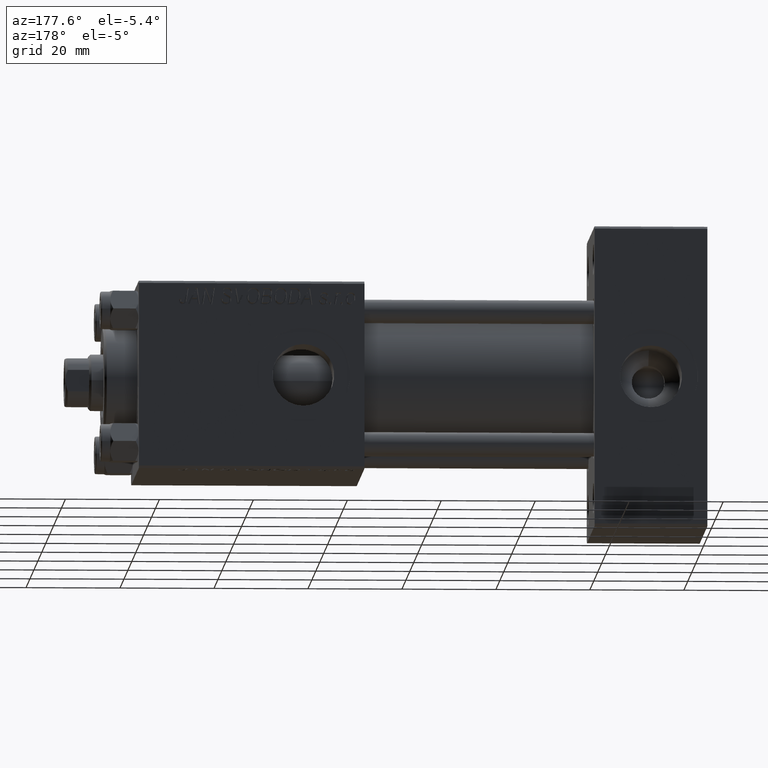
[diagram: clean part render]
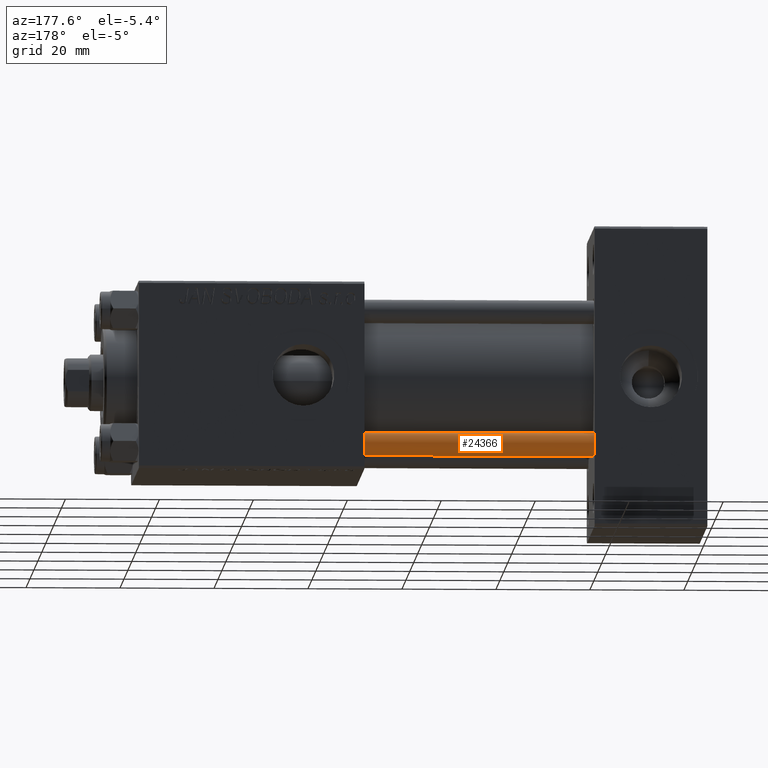
[diagram: same view with one face highlighted and labeled with its STEP entity id]
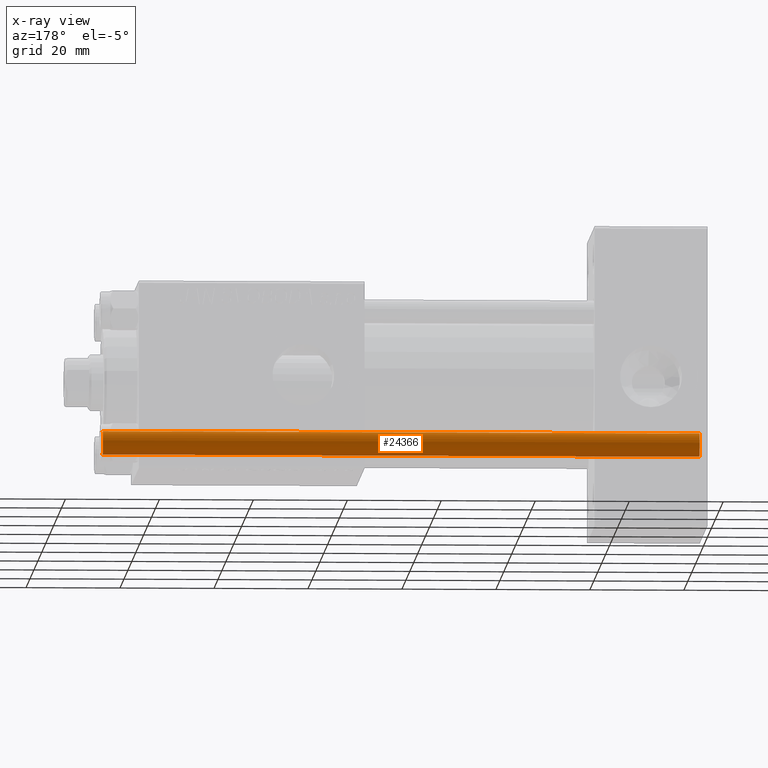
[diagram: x-ray of the same camera — body ghosted, the highlighted face saturated]
A machine part, auxiliary view. The second image highlights one B-rep face of the part: STEP entity #24366.
The next image is the same camera in x-ray: the body ghosted, the highlighted face saturated — about 0% of this face is hidden behind the body in this view.
In plain terms, the highlighted cylindrical surface (edge-blend (fillet) strip) has radius 2.5 mm, axis along (-1, 0, 0).
Its self-contained STEP definition (entity closure, byte-faithful):
#811 = EDGE_CURVE ( 'NONE', #39328, #16048, #17593, .T. ) ;
#867 = EDGE_CURVE ( 'NONE', #39328, #16088, #1653, .T. ) ;
#1653 = CIRCLE ( 'NONE', #42764, 2.500000000000000000 ) ;
#2713 = VERTEX_POINT ( 'NONE', #41228 ) ;
#4788 = CARTESIAN_POINT ( 'NONE',  ( 0.000000000000000000, 0.000000000000000000, 128.0000000000000000 ) ) ;
#8382 = CARTESIAN_POINT ( 'NONE',  ( -2.500000000000000000, 0.000000000000000000, 127.5000000000000000 ) ) ;
#11103 = AXIS2_PLACEMENT_3D ( 'NONE', #4788, #36062, #31799 ) ;
#16048 = VERTEX_POINT ( 'NONE', #41687 ) ;
#16088 = VERTEX_POINT ( 'NONE', #8382 ) ;
#17593 = LINE ( 'NONE', #29448, #45170 ) ;
#18329 = CARTESIAN_POINT ( 'NONE',  ( 0.000000000000000000, 0.000000000000000000, 127.5000000000000000 ) ) ;
#19410 = ORIENTED_EDGE ( 'NONE', *, *, #867, .T. ) ;
#20871 = DIRECTION ( 'NONE',  ( -0.000000000000000000, -0.000000000000000000, -1.000000000000000000 ) ) ;
#22431 = DIRECTION ( 'NONE',  ( 1.000000000000000000, 0.000000000000000000, 0.000000000000000000 ) ) ;
#22656 = AXIS2_PLACEMENT_3D ( 'NONE', #49167, #38051, #22431 ) ;
#23481 = EDGE_LOOP ( 'NONE', ( #46770, #19410, #30339, #39041 ) ) ;
#24366 = ADVANCED_FACE ( 'NONE', ( #36310 ), #24479, .T. ) ;
#24479 = CYLINDRICAL_SURFACE ( 'NONE', #11103, 2.500000000000000000 ) ;
#29448 = CARTESIAN_POINT ( 'NONE',  ( 2.500000000000000000, 3.061616997868383141E-16, 128.0000000000000000 ) ) ;
#30339 = ORIENTED_EDGE ( 'NONE', *, *, #31948, .T. ) ;
#30693 = DIRECTION ( 'NONE',  ( 0.000000000000000000, 0.000000000000000000, -1.000000000000000000 ) ) ;
#31176 = CARTESIAN_POINT ( 'NONE',  ( -2.500000000000000000, 0.000000000000000000, 128.0000000000000000 ) ) ;
#31799 = DIRECTION ( 'NONE',  ( -1.000000000000000000, 0.000000000000000000, 0.000000000000000000 ) ) ;
#31948 = EDGE_CURVE ( 'NONE', #16088, #2713, #34705, .T. ) ;
#32301 = CIRCLE ( 'NONE', #22656, 2.500000000000000000 ) ;
#33056 = EDGE_CURVE ( 'NONE', #2713, #16048, #32301, .T. ) ;
#34705 = LINE ( 'NONE', #31176, #48397 ) ;
#36062 = DIRECTION ( 'NONE',  ( -0.000000000000000000, -0.000000000000000000, -1.000000000000000000 ) ) ;
#36310 = FACE_OUTER_BOUND ( 'NONE', #23481, .T. ) ;
#38051 = DIRECTION ( 'NONE',  ( -0.000000000000000000, -0.000000000000000000, 1.000000000000000000 ) ) ;
#39041 = ORIENTED_EDGE ( 'NONE', *, *, #33056, .T. ) ;
#39328 = VERTEX_POINT ( 'NONE', #48078 ) ;
#41228 = CARTESIAN_POINT ( 'NONE',  ( -2.500000000000000000, 0.000000000000000000, 0.5000000000000281997 ) ) ;
#41687 = CARTESIAN_POINT ( 'NONE',  ( 2.500000000000000000, 3.061616997868383141E-16, 0.5000000000000281997 ) ) ;
#42272 = DIRECTION ( 'NONE',  ( -0.000000000000000000, -0.000000000000000000, -1.000000000000000000 ) ) ;
#42764 = AXIS2_PLACEMENT_3D ( 'NONE', #18329, #30693, #45319 ) ;
#45170 = VECTOR ( 'NONE', #20871, 1000.000000000000000 ) ;
#45319 = DIRECTION ( 'NONE',  ( 1.000000000000000000, 0.000000000000000000, 0.000000000000000000 ) ) ;
#46770 = ORIENTED_EDGE ( 'NONE', *, *, #811, .F. ) ;
#48078 = CARTESIAN_POINT ( 'NONE',  ( 2.500000000000000000, 3.061616997868383141E-16, 127.5000000000000000 ) ) ;
#48397 = VECTOR ( 'NONE', #42272, 1000.000000000000000 ) ;
#49167 = CARTESIAN_POINT ( 'NONE',  ( 0.000000000000000000, 0.000000000000000000, 0.5000000000000281997 ) ) ;